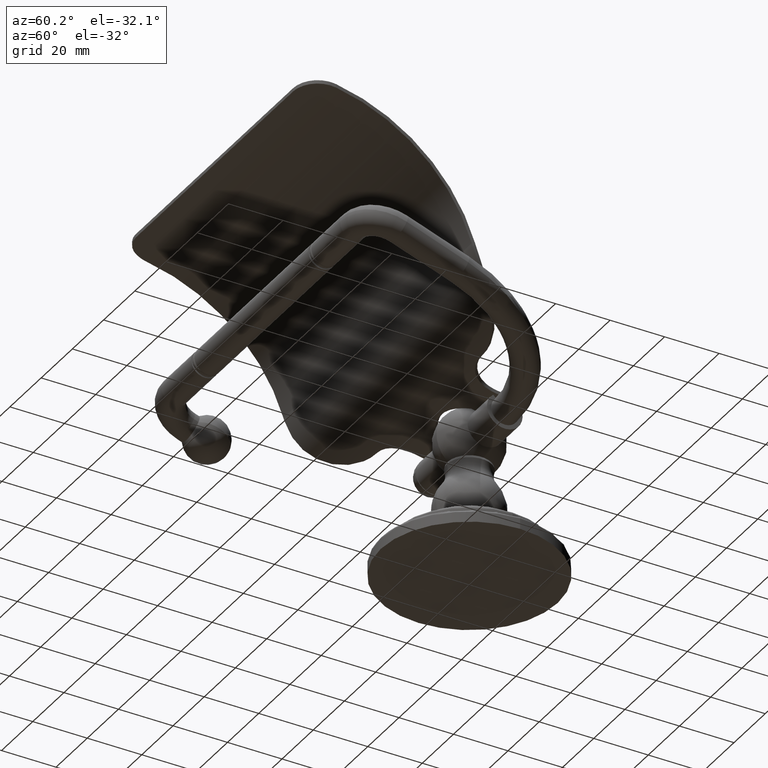
[diagram: clean part render]
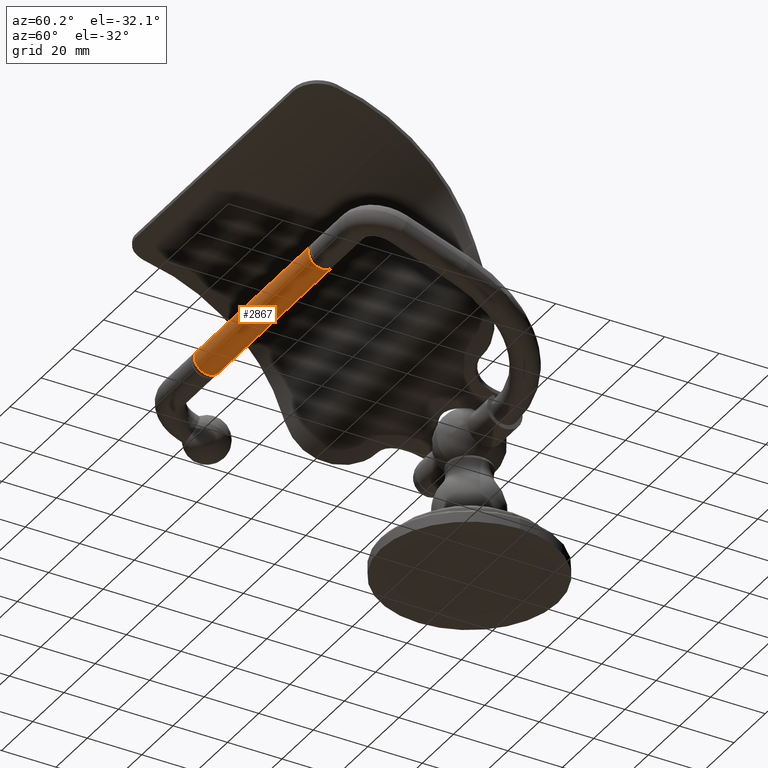
[diagram: same view with one face highlighted and labeled with its STEP entity id]
A machine part, auxiliary view. The second image highlights one B-rep face of the part: STEP entity #2867.
In plain terms, the highlighted cylindrical surface (edge-blend (fillet) strip) has radius 5.0038 mm, axis along (-1, 0, 0).
Its self-contained STEP definition (entity closure, byte-faithful):
#1268=DIRECTION('',(-1.E0,0.E0,0.E0));
#1269=VECTOR('',#1268,2.873003125122E0);
#1270=CARTESIAN_POINT('',(1.45E0,-3.145151201770E0,3.091741419711E0));
#1271=LINE('',#1270,#1269);
#1277=CARTESIAN_POINT('',(1.45E0,-2.960031755476E0,3.024363451476E0));
#1278=DIRECTION('',(-1.E0,0.E0,0.E0));
#1279=DIRECTION('',(0.E0,9.396926207859E-1,-3.420201433257E-1));
#1280=AXIS2_PLACEMENT_3D('',#1277,#1278,#1279);
#1282=DIRECTION('',(-1.E0,0.E0,0.E0));
#1283=VECTOR('',#1282,2.873003125122E0);
#1284=CARTESIAN_POINT('',(1.45E0,-2.774912309181E0,2.956985483241E0));
#1285=LINE('',#1284,#1283);
#1286=CARTESIAN_POINT('',(-1.423003125122E0,-2.960031755476E0,
3.024363451476E0));
#1287=DIRECTION('',(-1.E0,0.E0,0.E0));
#1288=DIRECTION('',(0.E0,9.396926207859E-1,-3.420201433257E-1));
#1289=AXIS2_PLACEMENT_3D('',#1286,#1287,#1288);
#1532=CARTESIAN_POINT('',(1.45E0,-3.145151201770E0,3.091741419711E0));
#1533=CARTESIAN_POINT('',(1.45E0,-2.774912309181E0,2.956985483241E0));
#1534=VERTEX_POINT('',#1532);
#1535=VERTEX_POINT('',#1533);
#1536=CARTESIAN_POINT('',(-1.423003125122E0,-3.145151201770E0,
3.091741419711E0));
#1537=CARTESIAN_POINT('',(-1.423003125122E0,-2.774912309181E0,
2.956985483241E0));
#1538=VERTEX_POINT('',#1536);
#1539=VERTEX_POINT('',#1537);
#2855=CARTESIAN_POINT('',(2.25E0,-2.960031755476E0,3.024363451476E0));
#2856=DIRECTION('',(-1.E0,0.E0,0.E0));
#2857=DIRECTION('',(0.E0,-9.396926207859E-1,3.420201433257E-1));
#2858=AXIS2_PLACEMENT_3D('',#2855,#2856,#2857);
#2859=CYLINDRICAL_SURFACE('',#2858,1.97E-1);
#2860=ORIENTED_EDGE('',*,*,#2820,.F.);
#2861=ORIENTED_EDGE('',*,*,#2850,.T.);
#2863=ORIENTED_EDGE('',*,*,#2862,.T.);
#2864=ORIENTED_EDGE('',*,*,#2846,.F.);
#2865=EDGE_LOOP('',(#2860,#2861,#2863,#2864));
#2866=FACE_OUTER_BOUND('',#2865,.F.);
#2867=ADVANCED_FACE('',(#2866),#2859,.T.);
#1281=CIRCLE('',#1280,1.97E-1);
#1290=CIRCLE('',#1289,1.97E-1);
#2820=EDGE_CURVE('',#1535,#1534,#1281,.T.);
#2846=EDGE_CURVE('',#1534,#1538,#1271,.T.);
#2850=EDGE_CURVE('',#1535,#1539,#1285,.T.);
#2862=EDGE_CURVE('',#1539,#1538,#1290,.T.);